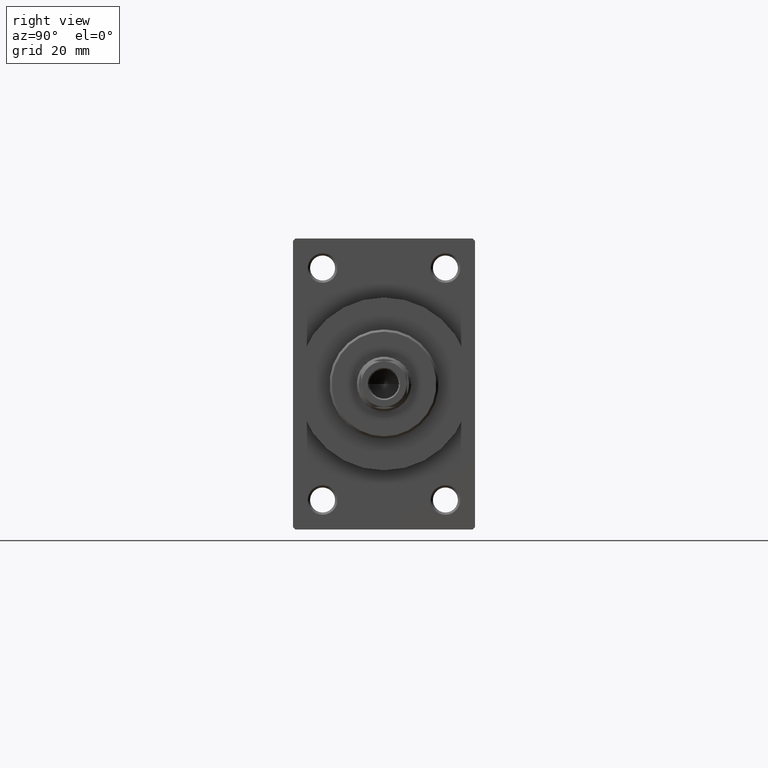
[diagram: clean part render]
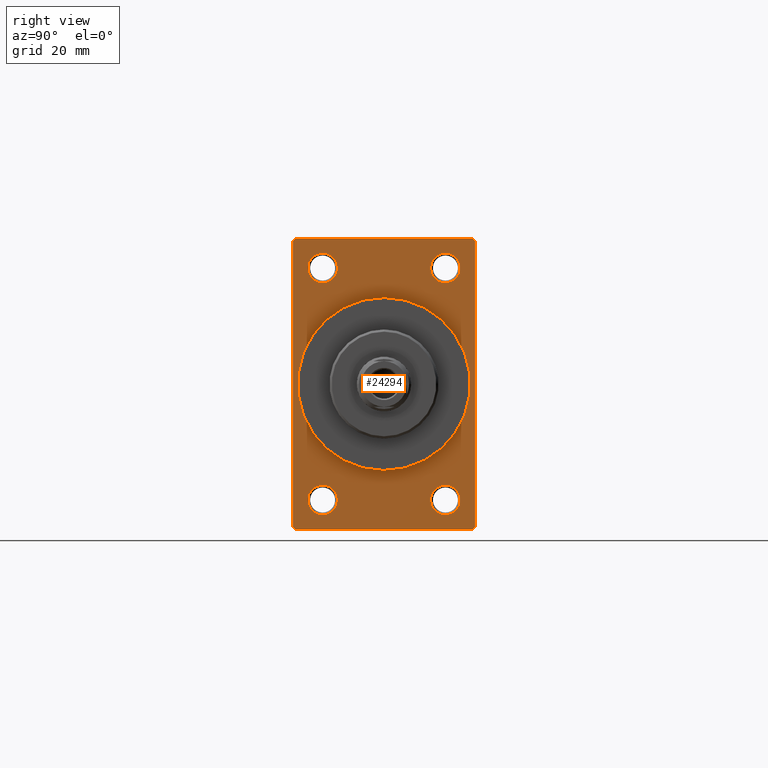
[diagram: same view with one face highlighted and labeled with its STEP entity id]
A machine part, right view. The second image highlights one B-rep face of the part: STEP entity #24294.
In plain terms, the highlighted planar face has unit normal (-1, 0, 0).
Its self-contained STEP definition (entity closure, byte-faithful):
#239 = AXIS2_PLACEMENT_3D ( 'NONE', #40431, #11174, #7835 ) ;
#266 = DIRECTION ( 'NONE',  ( 1.000000000000000000, 0.000000000000000000, 0.000000000000000000 ) ) ;
#736 = EDGE_CURVE ( 'NONE', #37866, #45093, #36298, .T. ) ;
#1130 = DIRECTION ( 'NONE',  ( 0.000000000000000000, 0.000000000000000000, -1.000000000000000000 ) ) ;
#1237 = CARTESIAN_POINT ( 'NONE',  ( 109.0000000000000142, 13.49999999999999822, 25.50000000000000355 ) ) ;
#1288 = DIRECTION ( 'NONE',  ( 0.000000000000000000, 0.7071067811865426878, -0.7071067811865524577 ) ) ;
#1312 = CARTESIAN_POINT ( 'NONE',  ( 109.0000000000000142, 13.49999999999999822, 22.25000000000004263 ) ) ;
#1396 = EDGE_CURVE ( 'NONE', #29230, #6725, #3484, .T. ) ;
#2028 = EDGE_CURVE ( 'NONE', #5875, #40983, #29143, .T. ) ;
#2452 = DIRECTION ( 'NONE',  ( 1.000000000000000000, 0.000000000000000000, 0.000000000000000000 ) ) ;
#2693 = DIRECTION ( 'NONE',  ( 0.000000000000000000, 0.000000000000000000, -1.000000000000000000 ) ) ;
#2730 = CARTESIAN_POINT ( 'NONE',  ( 109.0000000000000142, -20.00000000000000000, -31.49999999999997868 ) ) ;
#3101 = EDGE_CURVE ( 'NONE', #40983, #5875, #9257, .T. ) ;
#3284 = EDGE_LOOP ( 'NONE', ( #31281, #25510 ) ) ;
#3484 = LINE ( 'NONE', #28732, #27241 ) ;
#4186 = VERTEX_POINT ( 'NONE', #44596 ) ;
#5322 = CARTESIAN_POINT ( 'NONE',  ( 109.0000000000000142, 0.000000000000000000, 0.000000000000000000 ) ) ;
#5631 = CARTESIAN_POINT ( 'NONE',  ( 109.0000000000000142, -13.50000000000000178, 25.50000000000000355 ) ) ;
#5817 = CARTESIAN_POINT ( 'NONE',  ( 109.0000000000000142, -19.49999999999998579, 31.99999999999999289 ) ) ;
#5875 = VERTEX_POINT ( 'NONE', #28328 ) ;
#6145 = CARTESIAN_POINT ( 'NONE',  ( 109.0000000000000142, -13.50000000000000533, -28.74999999999999645 ) ) ;
#6305 = CARTESIAN_POINT ( 'NONE',  ( 109.0000000000000142, -13.50000000000000178, 28.75000000000000355 ) ) ;
#6715 = EDGE_LOOP ( 'NONE', ( #16802, #37102, #16105, #40330, #27403, #23171, #41448, #19599 ) ) ;
#6725 = VERTEX_POINT ( 'NONE', #31159 ) ;
#7150 = CARTESIAN_POINT ( 'NONE',  ( 109.0000000000000142, 20.00000000000000000, 32.00000000000000000 ) ) ;
#7436 = AXIS2_PLACEMENT_3D ( 'NONE', #45135, #41559, #45365 ) ;
#7793 = CARTESIAN_POINT ( 'NONE',  ( 109.0000000000000142, -20.00000000000000000, 31.99999999999999289 ) ) ;
#7835 = DIRECTION ( 'NONE',  ( 0.000000000000000000, 0.000000000000000000, 1.000000000000000000 ) ) ;
#8002 = AXIS2_PLACEMENT_3D ( 'NONE', #19423, #34420, #27275 ) ;
#8901 = DIRECTION ( 'NONE',  ( 0.000000000000000000, 0.000000000000000000, 1.000000000000000000 ) ) ;
#9067 = CARTESIAN_POINT ( 'NONE',  ( 109.0000000000000142, 20.00000000000000000, -31.49999999999998579 ) ) ;
#9257 = CIRCLE ( 'NONE', #40429, 3.249999999999961364 ) ;
#9263 = AXIS2_PLACEMENT_3D ( 'NONE', #22959, #41737, #8901 ) ;
#9568 = VERTEX_POINT ( 'NONE', #42000 ) ;
#9782 = CARTESIAN_POINT ( 'NONE',  ( 109.0000000000000142, 19.49999999999998579, 32.00000000000000000 ) ) ;
#10163 = CARTESIAN_POINT ( 'NONE',  ( 109.0000000000000142, 20.00000000000000000, 31.49999999999998579 ) ) ;
#11024 = DIRECTION ( 'NONE',  ( -1.000000000000000000, -0.000000000000000000, -0.000000000000000000 ) ) ;
#11056 = VECTOR ( 'NONE', #40064, 1000.000000000000000 ) ;
#11174 = DIRECTION ( 'NONE',  ( -1.000000000000000000, -0.000000000000000000, -0.000000000000000000 ) ) ;
#11213 = VERTEX_POINT ( 'NONE', #6305 ) ;
#11216 = EDGE_CURVE ( 'NONE', #45527, #29230, #20131, .T. ) ;
#11421 = EDGE_CURVE ( 'NONE', #19243, #27714, #35290, .T. ) ;
#11538 = CIRCLE ( 'NONE', #9263, 3.250000000000002665 ) ;
#11997 = CARTESIAN_POINT ( 'NONE',  ( 109.0000000000000142, 13.49999999999999822, -25.50000000000000000 ) ) ;
#12077 = CARTESIAN_POINT ( 'NONE',  ( 109.0000000000000142, -13.50000000000000178, 22.25000000000000000 ) ) ;
#12225 = EDGE_LOOP ( 'NONE', ( #32865, #15608 ) ) ;
#12452 = EDGE_CURVE ( 'NONE', #4186, #22919, #16218, .T. ) ;
#12900 = EDGE_LOOP ( 'NONE', ( #33781, #32054 ) ) ;
#12941 = EDGE_CURVE ( 'NONE', #27714, #19243, #34611, .T. ) ;
#13221 = ORIENTED_EDGE ( 'NONE', *, *, #12941, .F. ) ;
#14130 = DIRECTION ( 'NONE',  ( 0.000000000000000000, 0.000000000000000000, 1.000000000000000000 ) ) ;
#14523 = VERTEX_POINT ( 'NONE', #31414 ) ;
#15235 = LINE ( 'NONE', #7150, #28140 ) ;
#15490 = PLANE ( 'NONE',  #28745 ) ;
#15572 = AXIS2_PLACEMENT_3D ( 'NONE', #5322, #2452, #2693 ) ;
#15608 = ORIENTED_EDGE ( 'NONE', *, *, #25514, .T. ) ;
#15764 = DIRECTION ( 'NONE',  ( 0.000000000000000000, 0.000000000000000000, 1.000000000000000000 ) ) ;
#16105 = ORIENTED_EDGE ( 'NONE', *, *, #46646, .F. ) ;
#16218 = LINE ( 'NONE', #9067, #43655 ) ;
#16761 = ORIENTED_EDGE ( 'NONE', *, *, #20326, .T. ) ;
#16802 = ORIENTED_EDGE ( 'NONE', *, *, #32184, .T. ) ;
#16845 = DIRECTION ( 'NONE',  ( -1.000000000000000000, 0.000000000000000000, -0.000000000000000000 ) ) ;
#17084 = FACE_OUTER_BOUND ( 'NONE', #6715, .T. ) ;
#18886 = LINE ( 'NONE', #43639, #11056 ) ;
#18909 = CARTESIAN_POINT ( 'NONE',  ( 109.0000000000000142, -19.49999999999998579, -32.00000000000000000 ) ) ;
#19056 = FACE_BOUND ( 'NONE', #27607, .T. ) ;
#19243 = VERTEX_POINT ( 'NONE', #42106 ) ;
#19372 = DIRECTION ( 'NONE',  ( 0.000000000000000000, 0.000000000000000000, 1.000000000000000000 ) ) ;
#19423 = CARTESIAN_POINT ( 'NONE',  ( 109.0000000000000142, 13.49999999999999822, -25.50000000000000000 ) ) ;
#19477 = CARTESIAN_POINT ( 'NONE',  ( 109.0000000000000142, 13.49999999999999822, -28.75000000000000000 ) ) ;
#19599 = ORIENTED_EDGE ( 'NONE', *, *, #1396, .T. ) ;
#20131 = LINE ( 'NONE', #42019, #21584 ) ;
#20326 = EDGE_CURVE ( 'NONE', #14523, #44411, #36332, .T. ) ;
#20657 = FACE_BOUND ( 'NONE', #3284, .T. ) ;
#21187 = CIRCLE ( 'NONE', #43957, 3.250000000000002665 ) ;
#21584 = VECTOR ( 'NONE', #23945, 1000.000000000000000 ) ;
#22173 = CARTESIAN_POINT ( 'NONE',  ( 109.0000000000000142, 0.000000000000000000, 0.000000000000000000 ) ) ;
#22919 = VERTEX_POINT ( 'NONE', #43448 ) ;
#22959 = CARTESIAN_POINT ( 'NONE',  ( 109.0000000000000142, -13.50000000000000178, 25.50000000000000355 ) ) ;
#23146 = DIRECTION ( 'NONE',  ( -1.000000000000000000, -0.000000000000000000, -0.000000000000000000 ) ) ;
#23171 = ORIENTED_EDGE ( 'NONE', *, *, #39327, .T. ) ;
#23730 = DIRECTION ( 'NONE',  ( -1.000000000000000000, -0.000000000000000000, -0.000000000000000000 ) ) ;
#23746 = VERTEX_POINT ( 'NONE', #10163 ) ;
#23945 = DIRECTION ( 'NONE',  ( 0.000000000000000000, -1.000000000000000000, -1.734723475976807094E-16 ) ) ;
#24279 = AXIS2_PLACEMENT_3D ( 'NONE', #24863, #11024, #14130 ) ;
#24294 = ADVANCED_FACE ( 'NONE', ( #38277, #19056, #20657, #40948, #40709, #17084 ), #15490, .F. ) ;
#24863 = CARTESIAN_POINT ( 'NONE',  ( 109.0000000000000142, -13.50000000000000533, -25.49999999999999645 ) ) ;
#25020 = DIRECTION ( 'NONE',  ( 0.000000000000000000, -0.7071067811865474617, 0.7071067811865474617 ) ) ;
#25327 = CARTESIAN_POINT ( 'NONE',  ( 109.0000000000000142, 2.326828918379970970E-15, -19.00000000000000000 ) ) ;
#25439 = ORIENTED_EDGE ( 'NONE', *, *, #11421, .F. ) ;
#25510 = ORIENTED_EDGE ( 'NONE', *, *, #736, .T. ) ;
#25514 = EDGE_CURVE ( 'NONE', #11213, #39830, #21187, .T. ) ;
#25587 = LINE ( 'NONE', #18909, #36078 ) ;
#26200 = ORIENTED_EDGE ( 'NONE', *, *, #26936, .T. ) ;
#26936 = EDGE_CURVE ( 'NONE', #44411, #14523, #33380, .T. ) ;
#27241 = VECTOR ( 'NONE', #46602, 1000.000000000000114 ) ;
#27275 = DIRECTION ( 'NONE',  ( 0.000000000000000000, 0.000000000000000000, 1.000000000000000000 ) ) ;
#27403 = ORIENTED_EDGE ( 'NONE', *, *, #29658, .F. ) ;
#27607 = EDGE_LOOP ( 'NONE', ( #26200, #16761 ) ) ;
#27714 = VERTEX_POINT ( 'NONE', #25327 ) ;
#27875 = LINE ( 'NONE', #9782, #46582 ) ;
#28140 = VECTOR ( 'NONE', #33106, 1000.000000000000000 ) ;
#28202 = VECTOR ( 'NONE', #1130, 1000.000000000000000 ) ;
#28328 = CARTESIAN_POINT ( 'NONE',  ( 109.0000000000000142, 13.49999999999999822, 28.74999999999996803 ) ) ;
#28529 = CIRCLE ( 'NONE', #8002, 3.250000000000002665 ) ;
#28732 = CARTESIAN_POINT ( 'NONE',  ( 109.0000000000000142, -20.00000000000000000, 31.49999999999997868 ) ) ;
#28745 = AXIS2_PLACEMENT_3D ( 'NONE', #37155, #16845, #45419 ) ;
#29143 = CIRCLE ( 'NONE', #239, 3.249999999999961364 ) ;
#29230 = VERTEX_POINT ( 'NONE', #5817 ) ;
#29658 = EDGE_CURVE ( 'NONE', #23746, #22919, #15235, .T. ) ;
#31109 = DIRECTION ( 'NONE',  ( 0.000000000000000000, 0.000000000000000000, 1.000000000000000000 ) ) ;
#31159 = CARTESIAN_POINT ( 'NONE',  ( 109.0000000000000142, -20.00000000000000000, 31.49999999999997868 ) ) ;
#31281 = ORIENTED_EDGE ( 'NONE', *, *, #46425, .T. ) ;
#31414 = CARTESIAN_POINT ( 'NONE',  ( 109.0000000000000142, -13.50000000000000533, -22.24999999999999289 ) ) ;
#31449 = DIRECTION ( 'NONE',  ( -0.000000000000000000, 0.7071067811865474617, 0.7071067811865474617 ) ) ;
#32054 = ORIENTED_EDGE ( 'NONE', *, *, #2028, .T. ) ;
#32172 = EDGE_LOOP ( 'NONE', ( #25439, #13221 ) ) ;
#32184 = EDGE_CURVE ( 'NONE', #6725, #34787, #41111, .T. ) ;
#32536 = AXIS2_PLACEMENT_3D ( 'NONE', #11997, #37462, #19372 ) ;
#32865 = ORIENTED_EDGE ( 'NONE', *, *, #37928, .T. ) ;
#33106 = DIRECTION ( 'NONE',  ( 0.000000000000000000, 0.000000000000000000, -1.000000000000000000 ) ) ;
#33380 = CIRCLE ( 'NONE', #24279, 3.250000000000002665 ) ;
#33781 = ORIENTED_EDGE ( 'NONE', *, *, #3101, .T. ) ;
#34420 = DIRECTION ( 'NONE',  ( -1.000000000000000000, -0.000000000000000000, -0.000000000000000000 ) ) ;
#34611 = CIRCLE ( 'NONE', #15572, 19.00000000000000000 ) ;
#34787 = VERTEX_POINT ( 'NONE', #2730 ) ;
#35290 = CIRCLE ( 'NONE', #42107, 19.00000000000000000 ) ;
#35997 = DIRECTION ( 'NONE',  ( 0.000000000000000000, 0.000000000000000000, -1.000000000000000000 ) ) ;
#36078 = VECTOR ( 'NONE', #1288, 1000.000000000000000 ) ;
#36298 = CIRCLE ( 'NONE', #32536, 3.250000000000002665 ) ;
#36332 = CIRCLE ( 'NONE', #7436, 3.250000000000002665 ) ;
#37102 = ORIENTED_EDGE ( 'NONE', *, *, #43767, .T. ) ;
#37155 = CARTESIAN_POINT ( 'NONE',  ( 109.0000000000000142, 0.000000000000000000, 0.000000000000000000 ) ) ;
#37462 = DIRECTION ( 'NONE',  ( -1.000000000000000000, -0.000000000000000000, -0.000000000000000000 ) ) ;
#37866 = VERTEX_POINT ( 'NONE', #39619 ) ;
#37928 = EDGE_CURVE ( 'NONE', #39830, #11213, #11538, .T. ) ;
#38277 = FACE_BOUND ( 'NONE', #12225, .T. ) ;
#39327 = EDGE_CURVE ( 'NONE', #23746, #45527, #27875, .T. ) ;
#39619 = CARTESIAN_POINT ( 'NONE',  ( 109.0000000000000142, 13.49999999999999822, -22.24999999999999645 ) ) ;
#39830 = VERTEX_POINT ( 'NONE', #12077 ) ;
#40064 = DIRECTION ( 'NONE',  ( 0.000000000000000000, -1.000000000000000000, 0.000000000000000000 ) ) ;
#40330 = ORIENTED_EDGE ( 'NONE', *, *, #12452, .T. ) ;
#40429 = AXIS2_PLACEMENT_3D ( 'NONE', #1237, #23146, #15764 ) ;
#40431 = CARTESIAN_POINT ( 'NONE',  ( 109.0000000000000142, 13.49999999999999822, 25.50000000000000355 ) ) ;
#40709 = FACE_BOUND ( 'NONE', #32172, .T. ) ;
#40948 = FACE_BOUND ( 'NONE', #12900, .T. ) ;
#40983 = VERTEX_POINT ( 'NONE', #1312 ) ;
#41111 = LINE ( 'NONE', #7793, #28202 ) ;
#41448 = ORIENTED_EDGE ( 'NONE', *, *, #11216, .T. ) ;
#41559 = DIRECTION ( 'NONE',  ( -1.000000000000000000, -0.000000000000000000, -0.000000000000000000 ) ) ;
#41737 = DIRECTION ( 'NONE',  ( -1.000000000000000000, -0.000000000000000000, -0.000000000000000000 ) ) ;
#42000 = CARTESIAN_POINT ( 'NONE',  ( 109.0000000000000142, -19.49999999999998579, -32.00000000000000000 ) ) ;
#42019 = CARTESIAN_POINT ( 'NONE',  ( 109.0000000000000142, 20.00000000000000000, 32.00000000000000000 ) ) ;
#42106 = CARTESIAN_POINT ( 'NONE',  ( 109.0000000000000142, 0.000000000000000000, 19.00000000000000000 ) ) ;
#42107 = AXIS2_PLACEMENT_3D ( 'NONE', #22173, #266, #35997 ) ;
#43448 = CARTESIAN_POINT ( 'NONE',  ( 109.0000000000000142, 20.00000000000000000, -31.49999999999998579 ) ) ;
#43639 = CARTESIAN_POINT ( 'NONE',  ( 109.0000000000000142, 20.00000000000000000, -32.00000000000000000 ) ) ;
#43655 = VECTOR ( 'NONE', #31449, 1000.000000000000114 ) ;
#43767 = EDGE_CURVE ( 'NONE', #34787, #9568, #25587, .T. ) ;
#43957 = AXIS2_PLACEMENT_3D ( 'NONE', #5631, #23730, #31109 ) ;
#44411 = VERTEX_POINT ( 'NONE', #6145 ) ;
#44596 = CARTESIAN_POINT ( 'NONE',  ( 109.0000000000000142, 19.49999999999998579, -32.00000000000000000 ) ) ;
#45093 = VERTEX_POINT ( 'NONE', #19477 ) ;
#45135 = CARTESIAN_POINT ( 'NONE',  ( 109.0000000000000142, -13.50000000000000533, -25.49999999999999645 ) ) ;
#45365 = DIRECTION ( 'NONE',  ( 0.000000000000000000, 0.000000000000000000, 1.000000000000000000 ) ) ;
#45419 = DIRECTION ( 'NONE',  ( -0.000000000000000000, 0.000000000000000000, 1.000000000000000000 ) ) ;
#45527 = VERTEX_POINT ( 'NONE', #46289 ) ;
#46289 = CARTESIAN_POINT ( 'NONE',  ( 109.0000000000000142, 19.49999999999998579, 32.00000000000000000 ) ) ;
#46425 = EDGE_CURVE ( 'NONE', #45093, #37866, #28529, .T. ) ;
#46582 = VECTOR ( 'NONE', #25020, 1000.000000000000114 ) ;
#46602 = DIRECTION ( 'NONE',  ( -0.000000000000000000, -0.7071067811865474617, -0.7071067811865474617 ) ) ;
#46646 = EDGE_CURVE ( 'NONE', #4186, #9568, #18886, .T. ) ;